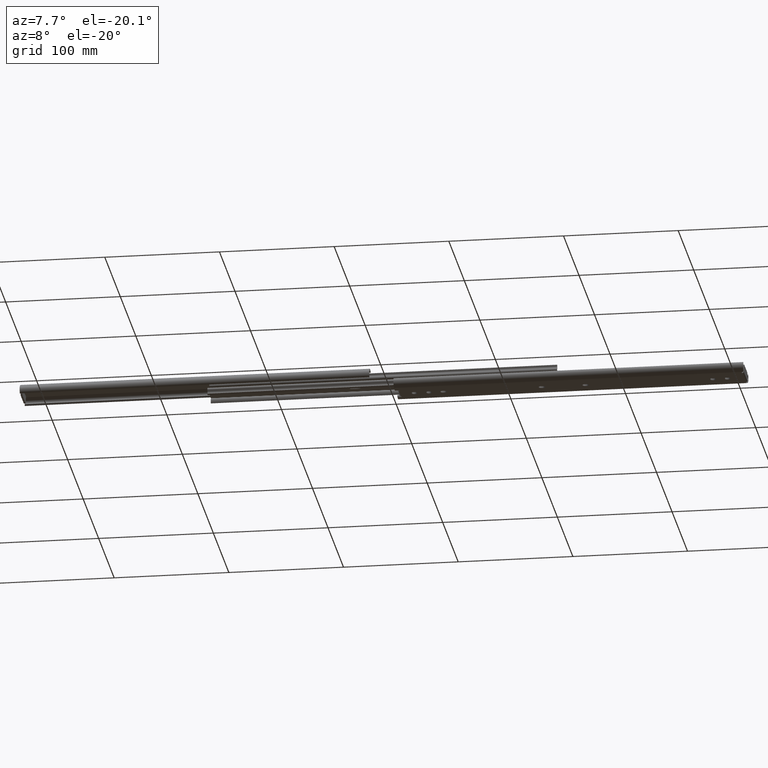
[diagram: clean part render]
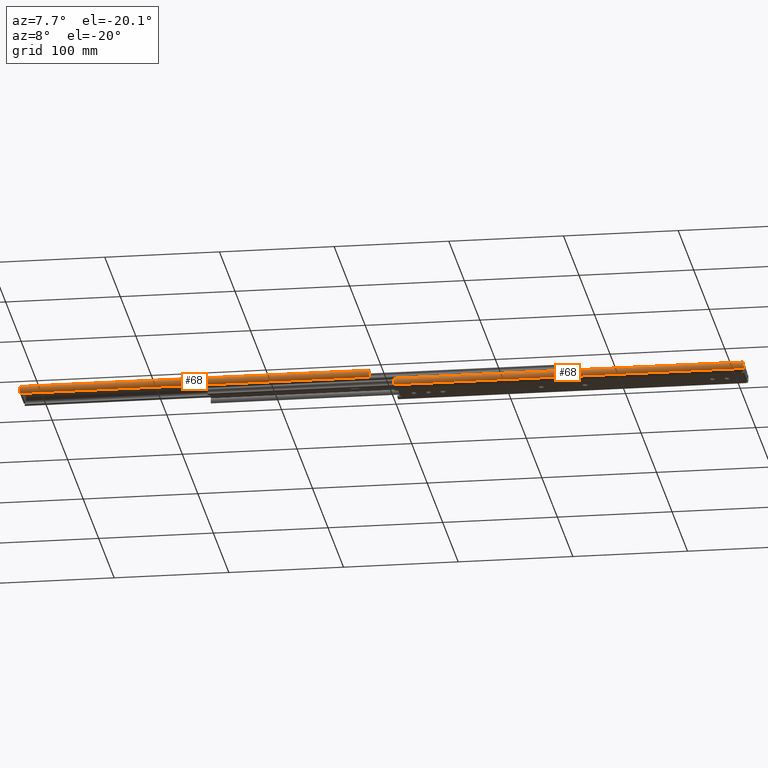
[diagram: same view with one multi-face feature highlighted, each face labeled with its STEP entity id]
A machine part, auxiliary view. The highlighted faces form ONE feature: a constant-radius fillet chain: 2 tangent blend faces with common blend radius 4 mm. The faces share edges in the B-rep.
Their STEP definitions:
[1] entity #68 (Cylinder):
#68 = ADVANCED_FACE ( 'NONE', ( #1608 ), #4355, .T. ) ;
#78 = CARTESIAN_POINT ( 'NONE',  ( 304.8000000000000100, -16.48258451996917300, 2.475736390272456500 ) ) ;
#92 = LINE ( 'NONE', #709, #925 ) ;
#93 = CARTESIAN_POINT ( 'NONE',  ( 0.0000000000000000000, -13.64999999999999700, 5.300000000000091300 ) ) ;
#123 = AXIS2_PLACEMENT_3D ( 'NONE', #272, #2729, #614 ) ;
#272 = CARTESIAN_POINT ( 'NONE',  ( 304.8000000000000100, -13.64999999999999700, 5.300000000000091300 ) ) ;
#276 = VECTOR ( 'NONE', #4270, 1000.000000000000000 ) ;
#305 = EDGE_CURVE ( 'NONE', #2542, #3142, #4068, .T. ) ;
#454 = DIRECTION ( 'NONE',  ( 0.0000000000000000000, 0.0000000000000000000, -1.000000000000000000 ) ) ;
#570 = CARTESIAN_POINT ( 'NONE',  ( 304.8000000000000100, -15.91053091109173300, 8.600000000000021000 ) ) ;
#614 = DIRECTION ( 'NONE',  ( 0.0000000000000000000, 0.0000000000000000000, -1.000000000000000000 ) ) ;
#709 = CARTESIAN_POINT ( 'NONE',  ( 304.8000000000000100, -15.91053091109173300, 8.600000000000021000 ) ) ;
#925 = VECTOR ( 'NONE', #2816, 1000.000000000000000 ) ;
#1443 = ORIENTED_EDGE ( 'NONE', *, *, #4614, .T. ) ;
#1608 = FACE_OUTER_BOUND ( 'NONE', #2269, .T. ) ;
#1842 = AXIS2_PLACEMENT_3D ( 'NONE', #2838, #2485, #2468 ) ;
#2043 = VERTEX_POINT ( 'NONE', #2849 ) ;
#2269 = EDGE_LOOP ( 'NONE', ( #2983, #2442, #1443, #2991 ) ) ;
#2442 = ORIENTED_EDGE ( 'NONE', *, *, #305, .F. ) ;
#2466 = CARTESIAN_POINT ( 'NONE',  ( 304.8000000000000100, -16.48258451996917300, 2.475736390272456500 ) ) ;
#2468 = DIRECTION ( 'NONE',  ( 0.0000000000000000000, 0.0000000000000000000, 1.000000000000000000 ) ) ;
#2485 = DIRECTION ( 'NONE',  ( -1.000000000000000000, -0.0000000000000000000, -0.0000000000000000000 ) ) ;
#2540 = AXIS2_PLACEMENT_3D ( 'NONE', #93, #2551, #454 ) ;
#2542 = VERTEX_POINT ( 'NONE', #78 ) ;
#2551 = DIRECTION ( 'NONE',  ( -1.000000000000000000, -0.0000000000000000000, -0.0000000000000000000 ) ) ;
#2558 = EDGE_CURVE ( 'NONE', #3142, #2043, #3473, .T. ) ;
#2707 = VERTEX_POINT ( 'NONE', #570 ) ;
#2729 = DIRECTION ( 'NONE',  ( -1.000000000000000000, -0.0000000000000000000, -0.0000000000000000000 ) ) ;
#2816 = DIRECTION ( 'NONE',  ( -1.000000000000000000, -0.0000000000000000000, -0.0000000000000000000 ) ) ;
#2838 = CARTESIAN_POINT ( 'NONE',  ( 304.8000000000000100, -13.64999999999999700, 5.300000000000091300 ) ) ;
#2849 = CARTESIAN_POINT ( 'NONE',  ( 0.0000000000000000000, -15.91053091109173300, 8.600000000000021000 ) ) ;
#2983 = ORIENTED_EDGE ( 'NONE', *, *, #2558, .F. ) ;
#2991 = ORIENTED_EDGE ( 'NONE', *, *, #4192, .T. ) ;
#3142 = VERTEX_POINT ( 'NONE', #3419 ) ;
#3419 = CARTESIAN_POINT ( 'NONE',  ( 0.0000000000000000000, -16.48258451996917300, 2.475736390272456500 ) ) ;
#3473 = CIRCLE ( 'NONE', #2540, 4.000000000000095900 ) ;
#3591 = CIRCLE ( 'NONE', #123, 4.000000000000095900 ) ;
#4068 = LINE ( 'NONE', #2466, #276 ) ;
#4192 = EDGE_CURVE ( 'NONE', #2707, #2043, #92, .T. ) ;
#4270 = DIRECTION ( 'NONE',  ( -1.000000000000000000, -0.0000000000000000000, -0.0000000000000000000 ) ) ;
#4355 = CYLINDRICAL_SURFACE ( 'NONE', #1842, 4.000000000000095900 ) ;
#4614 = EDGE_CURVE ( 'NONE', #2542, #2707, #3591, .T. ) ;
[2] entity #68 (Cylinder):
#68 = ADVANCED_FACE ( 'NONE', ( #1608 ), #4355, .T. ) ;
#78 = CARTESIAN_POINT ( 'NONE',  ( 304.8000000000000100, -16.48258451996917300, 2.475736390272456500 ) ) ;
#92 = LINE ( 'NONE', #709, #925 ) ;
#93 = CARTESIAN_POINT ( 'NONE',  ( 0.0000000000000000000, -13.64999999999999700, 5.300000000000091300 ) ) ;
#123 = AXIS2_PLACEMENT_3D ( 'NONE', #272, #2729, #614 ) ;
#272 = CARTESIAN_POINT ( 'NONE',  ( 304.8000000000000100, -13.64999999999999700, 5.300000000000091300 ) ) ;
#276 = VECTOR ( 'NONE', #4270, 1000.000000000000000 ) ;
#305 = EDGE_CURVE ( 'NONE', #2542, #3142, #4068, .T. ) ;
#454 = DIRECTION ( 'NONE',  ( 0.0000000000000000000, 0.0000000000000000000, -1.000000000000000000 ) ) ;
#570 = CARTESIAN_POINT ( 'NONE',  ( 304.8000000000000100, -15.91053091109173300, 8.600000000000021000 ) ) ;
#614 = DIRECTION ( 'NONE',  ( 0.0000000000000000000, 0.0000000000000000000, -1.000000000000000000 ) ) ;
#709 = CARTESIAN_POINT ( 'NONE',  ( 304.8000000000000100, -15.91053091109173300, 8.600000000000021000 ) ) ;
#925 = VECTOR ( 'NONE', #2816, 1000.000000000000000 ) ;
#1443 = ORIENTED_EDGE ( 'NONE', *, *, #4614, .T. ) ;
#1608 = FACE_OUTER_BOUND ( 'NONE', #2269, .T. ) ;
#1842 = AXIS2_PLACEMENT_3D ( 'NONE', #2838, #2485, #2468 ) ;
#2043 = VERTEX_POINT ( 'NONE', #2849 ) ;
#2269 = EDGE_LOOP ( 'NONE', ( #2983, #2442, #1443, #2991 ) ) ;
#2442 = ORIENTED_EDGE ( 'NONE', *, *, #305, .F. ) ;
#2466 = CARTESIAN_POINT ( 'NONE',  ( 304.8000000000000100, -16.48258451996917300, 2.475736390272456500 ) ) ;
#2468 = DIRECTION ( 'NONE',  ( 0.0000000000000000000, 0.0000000000000000000, 1.000000000000000000 ) ) ;
#2485 = DIRECTION ( 'NONE',  ( -1.000000000000000000, -0.0000000000000000000, -0.0000000000000000000 ) ) ;
#2540 = AXIS2_PLACEMENT_3D ( 'NONE', #93, #2551, #454 ) ;
#2542 = VERTEX_POINT ( 'NONE', #78 ) ;
#2551 = DIRECTION ( 'NONE',  ( -1.000000000000000000, -0.0000000000000000000, -0.0000000000000000000 ) ) ;
#2558 = EDGE_CURVE ( 'NONE', #3142, #2043, #3473, .T. ) ;
#2707 = VERTEX_POINT ( 'NONE', #570 ) ;
#2729 = DIRECTION ( 'NONE',  ( -1.000000000000000000, -0.0000000000000000000, -0.0000000000000000000 ) ) ;
#2816 = DIRECTION ( 'NONE',  ( -1.000000000000000000, -0.0000000000000000000, -0.0000000000000000000 ) ) ;
#2838 = CARTESIAN_POINT ( 'NONE',  ( 304.8000000000000100, -13.64999999999999700, 5.300000000000091300 ) ) ;
#2849 = CARTESIAN_POINT ( 'NONE',  ( 0.0000000000000000000, -15.91053091109173300, 8.600000000000021000 ) ) ;
#2983 = ORIENTED_EDGE ( 'NONE', *, *, #2558, .F. ) ;
#2991 = ORIENTED_EDGE ( 'NONE', *, *, #4192, .T. ) ;
#3142 = VERTEX_POINT ( 'NONE', #3419 ) ;
#3419 = CARTESIAN_POINT ( 'NONE',  ( 0.0000000000000000000, -16.48258451996917300, 2.475736390272456500 ) ) ;
#3473 = CIRCLE ( 'NONE', #2540, 4.000000000000095900 ) ;
#3591 = CIRCLE ( 'NONE', #123, 4.000000000000095900 ) ;
#4068 = LINE ( 'NONE', #2466, #276 ) ;
#4192 = EDGE_CURVE ( 'NONE', #2707, #2043, #92, .T. ) ;
#4270 = DIRECTION ( 'NONE',  ( -1.000000000000000000, -0.0000000000000000000, -0.0000000000000000000 ) ) ;
#4355 = CYLINDRICAL_SURFACE ( 'NONE', #1842, 4.000000000000095900 ) ;
#4614 = EDGE_CURVE ( 'NONE', #2542, #2707, #3591, .T. ) ;